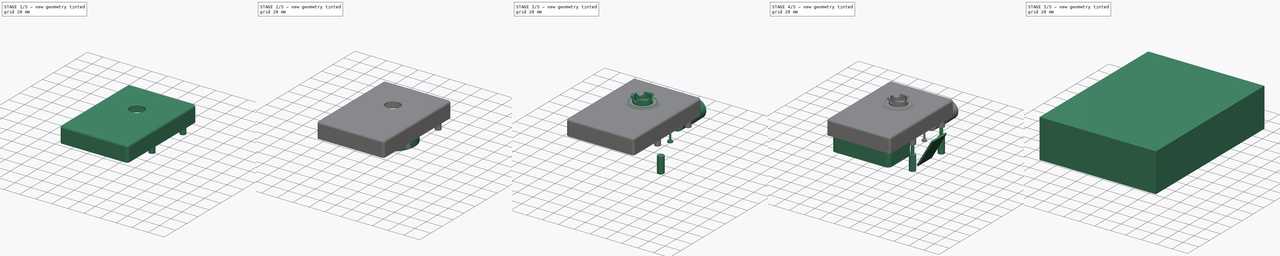
[diagram: build sequence overview — one tinted view per stage of 5, left to right]
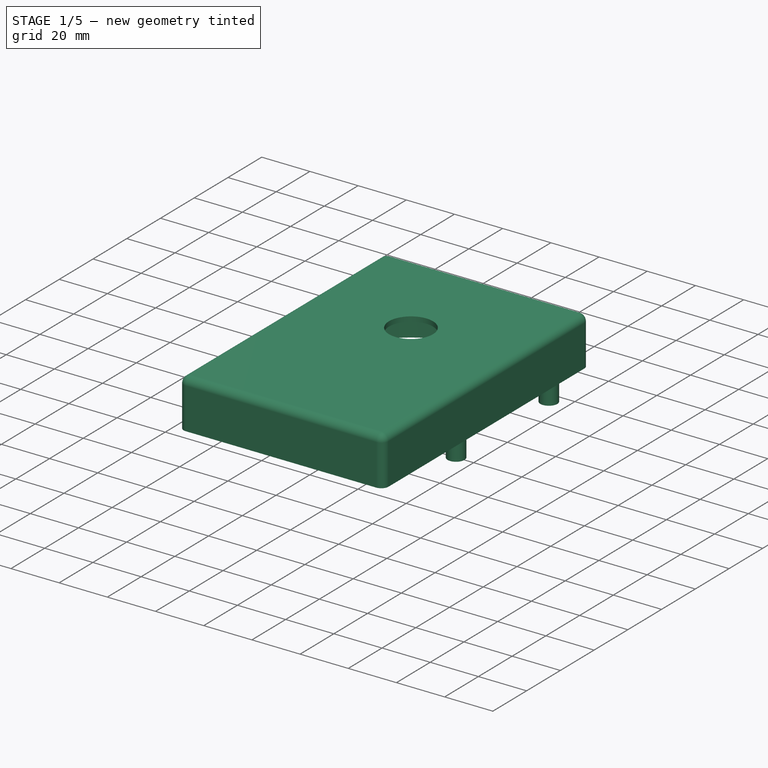
[diagram: stage 1 of 5 — iso view after this stage's code; geometry added in this stage tinted green]
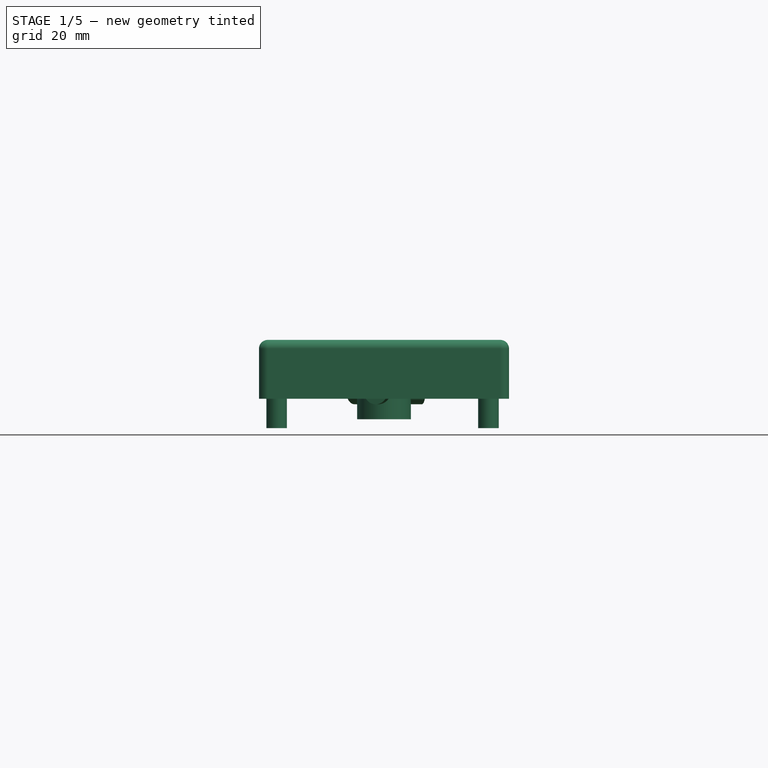
[diagram: stage 1 of 5 — front view after this stage's code; geometry added in this stage tinted green]
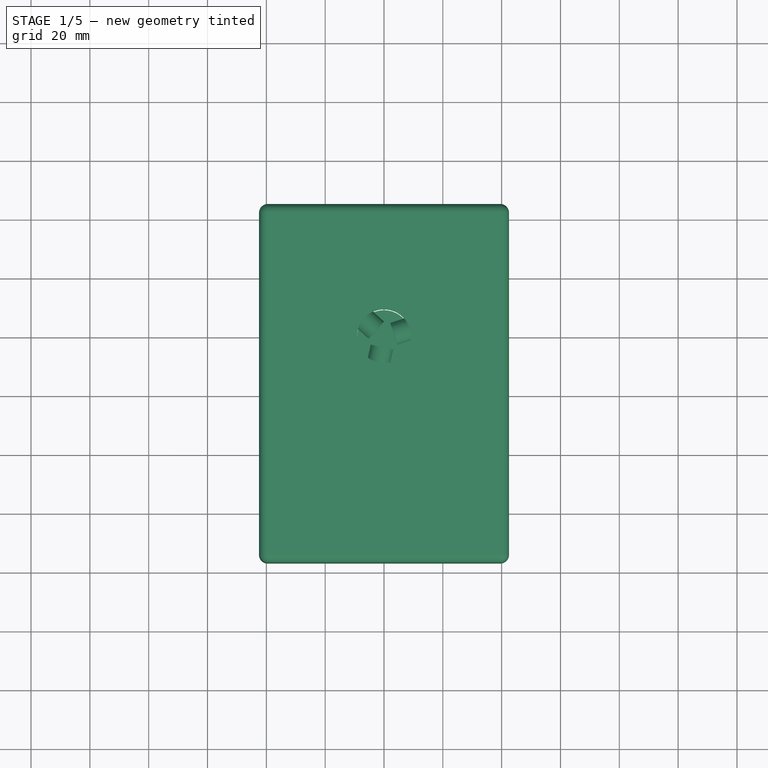
[diagram: stage 1 of 5 — top view after this stage's code; geometry added in this stage tinted green]
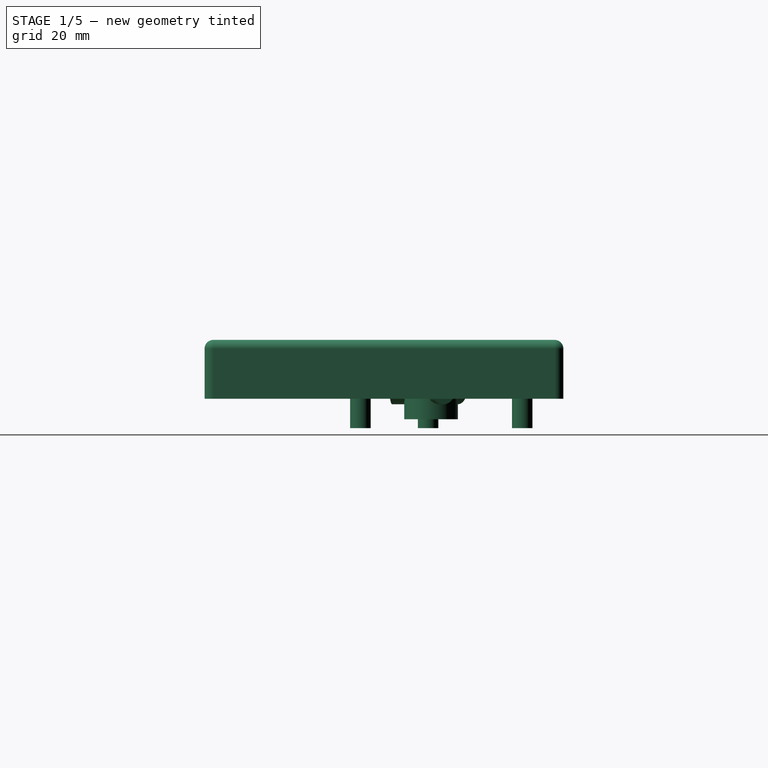
[diagram: stage 1 of 5 — right view after this stage's code; geometry added in this stage tinted green]
FCSTD DOCUMENT  (FreeCAD 0.18R4 (GitTag))
Label: PAPR-LOWER-V3
License: All rights reserved
LicenseURL: http://en.wikipedia.org/wiki/All_rights_reserved
objects: Part::Cylinder×35, Part::MultiFuse×18, Part::Fillet×15, Part::Box×10, Part::Cut×10, Part::FeaturePython×4, Sketcher::SketchObject×4, Part::Revolution×4, Part::Cone×3, Part::Mirroring×1, Part::Part2DObjectPython×1, Part::Extrusion×1
note: 106 computed .brp shape members not serialized (recipe doc carries the construction recipe); baked Part::Feature solids carry a one-line shape summary decoded from their .brp

FEATURE [Part::Box] Box011  label="LidBlock"
  AttacherType = Attacher::AttachEngine3D
  Height = 20
  Length = 85
  Placement = pos=(-42.5,-77,20) rot=(0,0,1;0rad)
  Width = 122
FEATURE [Part::Fillet] Fillet003  label="LidBlockSmooth"
  Base = -> Box011
  Edges = 8 edges r=3: [Edge1,Edge2,Edge3,Edge5,Edge6,Edge7,Edge10,Edge12]
FEATURE [Part::Cylinder] Cylinder020  label="LidBoss1"
  Angle = 360
  AttacherType = Attacher::AttachEngine3D
  Height = 10
  Placement = pos=(35.5,-24,10) rot=(0,0,1;0rad)
  Radius = 3.5
FEATURE [Part::Cylinder] Cylinder021  label="LidBoss2"
  Angle = 360
  AttacherType = Attacher::AttachEngine3D
  Height = 10
  Placement = pos=(35.5,31,10) rot=(0,0,1;0rad)
  Radius = 3.5
FEATURE [Part::Cylinder] Cylinder022  label="LidBoss3"
  Angle = 360
  AttacherType = Attacher::AttachEngine3D
  Height = 10
  Placement = pos=(-36.5,-1,10) rot=(0,0,1;0rad)
  Radius = 3.5
FEATURE [Part::Cylinder] Cylinder023  label="LidBossHole1"
  Angle = 360
  AttacherType = Attacher::AttachEngine3D
  Height = 10
  Placement = pos=(35.5,-24,10) rot=(0,0,1;0rad)
  Radius = 1.1
FEATURE [Part::Cylinder] Cylinder024  label="LidBossHole2"
  Angle = 360
  AttacherType = Attacher::AttachEngine3D
  Height = 10
  Placement = pos=(35.5,31,10) rot=(0,0,1;0rad)
  Radius = 1.1
FEATURE [Part::Cylinder] Cylinder025  label="LidBossHole3"
  Angle = 360
  AttacherType = Attacher::AttachEngine3D
  Height = 10
  Placement = pos=(-36.5,-1,10) rot=(0,0,1;0rad)
  Radius = 1.1
FEATURE [Part::Cut] Cut002  label="LidMount1"
  Base = -> Cylinder020
  Tool = -> Cylinder023
FEATURE [Part::Cut] Cut003  label="LidMount2"
  Base = -> Cylinder021
  Tool = -> Cylinder024
FEATURE [Part::Cylinder] Cylinder030  label="downpipe"
  Angle = 360
  AttacherType = Attacher::AttachEngine3D
  Height = 10
  Placement = pos=(0,0,13) rot=(0,0,1;0rad)
  Radius = 9.12
FEATURE [Part::Cylinder] Cylinder031  label="Cylinder029"
  Angle = 360
  AttacherType = Attacher::AttachEngine3D
  Height = 10
  Placement = pos=(3.3287,1.08156,22.1118) rot=(-0.154554,0.975821,0.154554;1.59527rad)
  Radius = 4
FEATURE [Part::FeaturePython] Array003  # Draft array (typed FeaturePython)
  Angle = 360
  ArrayType = 1
  Axis = (0,0,1)
  Base = -> Cylinder031
  Center = (0,0,0)
  Fuse = false
  IntervalAxis = (0,0,0)
  IntervalX = (1,0,0)
  IntervalY = (0,1,0)
  IntervalZ = (0,0,1)
  NumberPolar = 3
  NumberX = 1
  NumberY = 1
  NumberZ = 1
FEATURE [Part::Cylinder] Cylinder032  label="BlowerBodyEnvelopeLid"
  Angle = 360
  AttacherType = Attacher::AttachEngine3D
  Height = 18
  Placement = pos=(0,0,20) rot=(0,0,1;0rad)
  Radius = 35
FEATURE [Part::Cut] Cut009  label="LidMount3"
  Base = -> Cylinder022
  Tool = -> Cylinder025
FEATURE [Part::MultiFuse] Fusion023  label="LidOuter"
  Shapes = -> [Fillet003,Cut002,Cut009,Cut003]
FEATURE [Part::Cylinder] Cylinder033  label="OutletPocketLid"
  Angle = 360
  AttacherType = Attacher::AttachEngine3D
  Height = 40
  Placement = pos=(22,59.3,13.5) rot=(1,0,0;1.5708rad)
  Radius = 10.85
FEATURE [Part::Cylinder] Cylinder034  label="downpipeLid"
  Angle = 360
  AttacherType = Attacher::AttachEngine3D
  Height = 10
  Placement = pos=(0,0,38) rot=(0,0,1;0rad)
  Radius = 9.12
FEATURE [Part::MultiFuse] Fusion024  label="LidCombinedPocket"
  Shapes = -> [Cylinder033,Cylinder032,Cylinder034]
FEATURE [Part::Cut] Cut010  label="LidMinusInlet"
  Base = -> Fusion023
  Tool = -> Fusion024
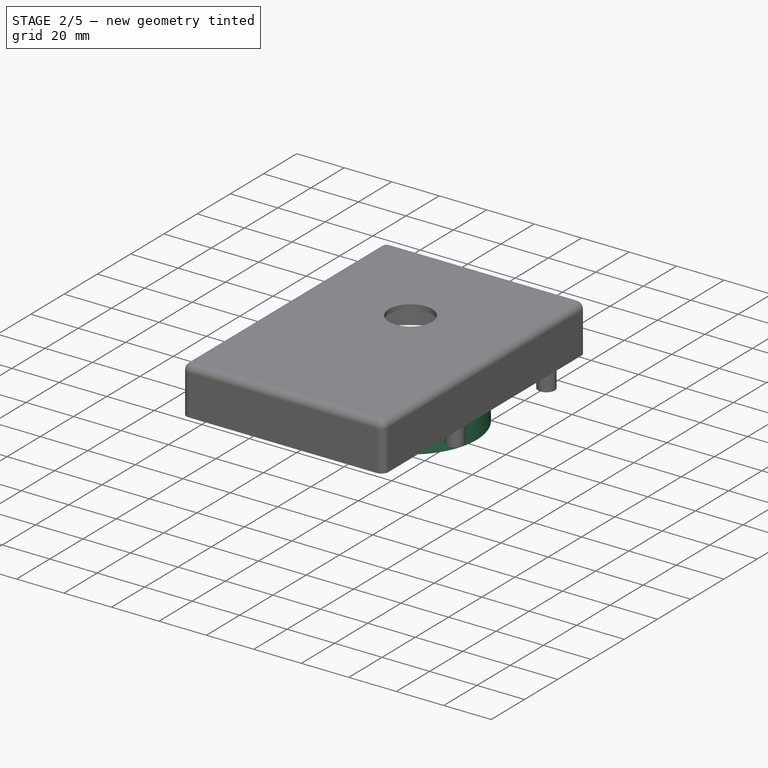
[diagram: stage 2 of 5 — iso view after this stage's code; geometry added in this stage tinted green]
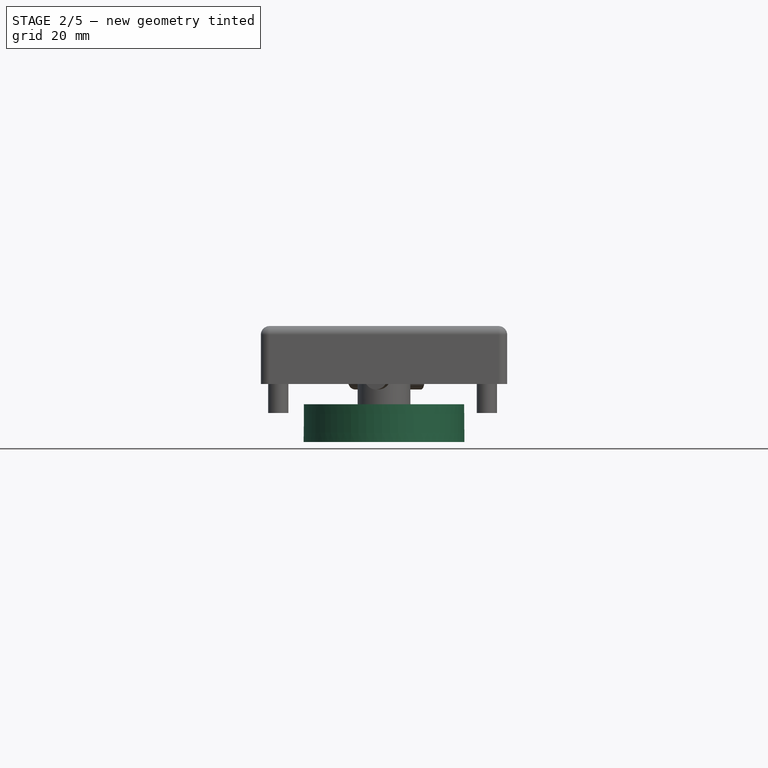
[diagram: stage 2 of 5 — front view after this stage's code; geometry added in this stage tinted green]
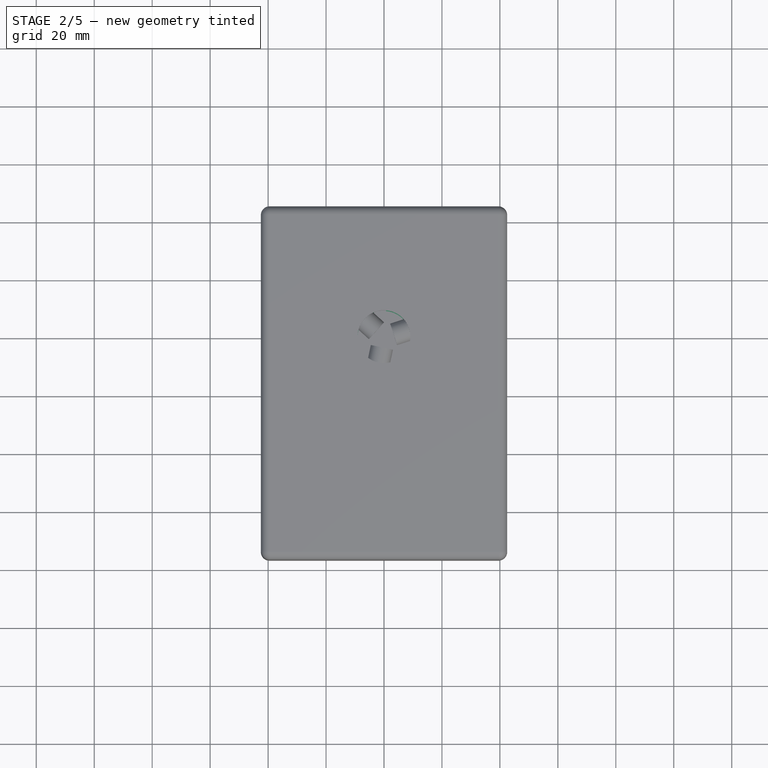
[diagram: stage 2 of 5 — top view after this stage's code; geometry added in this stage tinted green]
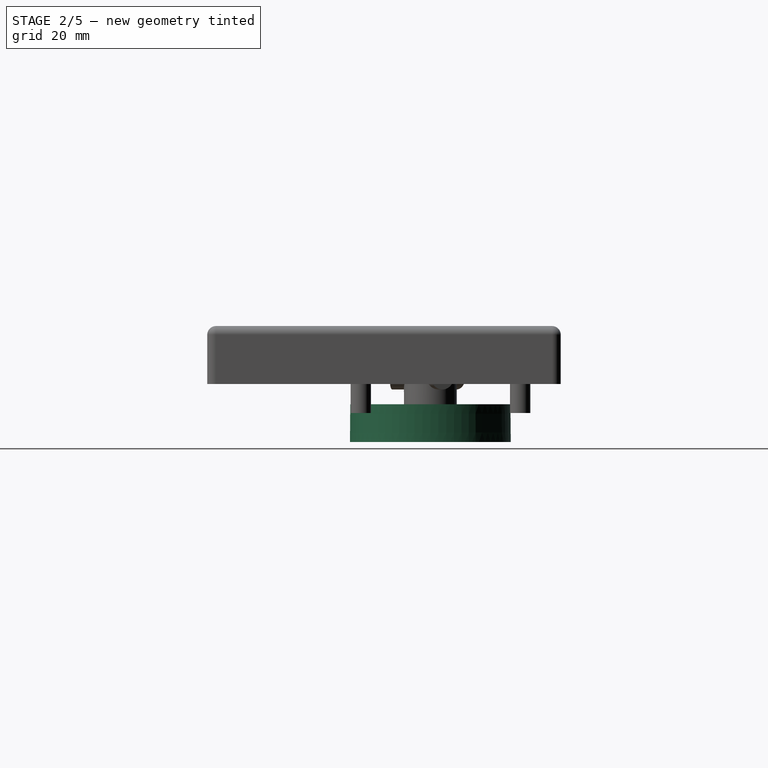
[diagram: stage 2 of 5 — right view after this stage's code; geometry added in this stage tinted green]
FEATURE [Part::Part2DObjectPython] ShapeString  # Draft 2D object (typed FeaturePython)
  FontFile = <path>
  Size = 5
  String = V2
  Tracking = 0
FEATURE [Sketcher::SketchObject] Sketch002  label="BayonetTooth001"
  Placement = pos=(0,0,0) rot=(1,0,0;1.5708rad)
  sketch-geometry (4):
    g0: LineSegment StartX=9.125 StartY=8.5 StartZ=0 EndX=12.625 EndY=8.5 EndZ=0
    g1: LineSegment StartX=12.625 StartY=8.5 StartZ=0 EndX=12.625 EndY=5.7 EndZ=0
    g2: LineSegment StartX=12.625 StartY=5.7 StartZ=0 EndX=9.125 EndY=5.7 EndZ=0
    g3: LineSegment StartX=9.125 StartY=5.7 StartZ=0 EndX=9.125 EndY=8.5 EndZ=0
  constraints (12):
    c: Coincident(g0,g1)
    c: Coincident(g1,g2)
    c: Coincident(g2,g3)
    c: Coincident(g3,g0)
    c: Horizontal(g0)
    c: Horizontal(g2)
    c: Vertical(g1)
    c: Vertical(g3)
    c: DistanceY(g1,g0) = 2.8
    c: DistanceX(g2,g1) = 3.5
    c: DistanceY(g-1,g0) = 8.5
    c: DistanceX(g-1,g2) = 9.125
FEATURE [Sketcher::SketchObject] Sketch003  label="BayonetTooth002"
  Placement = pos=(0,0,0) rot=(1,0,0;1.5708rad)
  sketch-geometry (4):
    g0: LineSegment StartX=9.125 StartY=8.5 StartZ=0 EndX=12.625 EndY=8.5 EndZ=0
    g1: LineSegment StartX=12.625 StartY=8.5 StartZ=0 EndX=12.625 EndY=5.7 EndZ=0
    g2: LineSegment StartX=12.625 StartY=5.7 StartZ=0 EndX=9.125 EndY=5.7 EndZ=0
    g3: LineSegment StartX=9.125 StartY=5.7 StartZ=0 EndX=9.125 EndY=8.5 EndZ=0
  constraints (12):
    c: Coincident(g0,g1)
    c: Coincident(g1,g2)
    c: Coincident(g2,g3)
    c: Coincident(g3,g0)
    c: Horizontal(g0)
    c: Horizontal(g2)
    c: Vertical(g1)
    c: Vertical(g3)
    c: DistanceY(g1,g0) = 2.8
    c: DistanceX(g2,g1) = 3.5
    c: DistanceY(g-1,g0) = 8.5
    c: DistanceX(g-1,g2) = 9.125
FEATURE [Sketcher::SketchObject] Sketch  label="GrooveProfile"
  Placement = pos=(0,0,0) rot=(1,0,0;1.5708rad)
  sketch-geometry (4):
    g0: LineSegment StartX=15.5 StartY=2 StartZ=0 EndX=14.5 EndY=2 EndZ=0
    g1: LineSegment StartX=14.5 StartY=2 StartZ=0 EndX=14.5 EndY=1 EndZ=0
    g2: LineSegment StartX=14.5 StartY=1 StartZ=0 EndX=15.5 EndY=1 EndZ=0
    g3: LineSegment StartX=15.5 StartY=1 StartZ=0 EndX=15.5 EndY=2 EndZ=0
  constraints (12):
    c: Coincident(g0,g1)
    c: Coincident(g1,g2)
    c: Coincident(g2,g3)
    c: Coincident(g3,g0)
    c: Horizontal(g0)
    c: Horizontal(g2)
    c: Vertical(g1)
    c: Vertical(g3)
    c: DistanceY(g1,g0) = 1
    c: Equal(g0,g1)
    c: DistanceX(g-1,g0) = 15.5
    c: DistanceY(g1,g-1) = -1
FEATURE [Sketcher::SketchObject] Sketch001  label="BayonetTooth"
  Placement = pos=(0,0,0) rot=(1,0,0;1.5708rad)
  sketch-geometry (4):
    g0: LineSegment StartX=9.125 StartY=8.5 StartZ=0 EndX=12.625 EndY=8.5 EndZ=0
    g1: LineSegment StartX=12.625 StartY=8.5 StartZ=0 EndX=12.625 EndY=5.7 EndZ=0
    g2: LineSegment StartX=12.625 StartY=5.7 StartZ=0 EndX=9.125 EndY=5.7 EndZ=0
    g3: LineSegment StartX=9.125 StartY=5.7 StartZ=0 EndX=9.125 EndY=8.5 EndZ=0
  constraints (12):
    c: Coincident(g0,g1)
    c: Coincident(g1,g2)
    c: Coincident(g2,g3)
    c: Coincident(g3,g0)
    c: Horizontal(g0)
    c: Horizontal(g2)
    c: Vertical(g1)
    c: Vertical(g3)
    c: DistanceY(g1,g0) = 2.8
    c: DistanceX(g2,g1) = 3.5
    c: DistanceY(g-1,g0) = 8.5
    c: DistanceX(g-1,g2) = 9.125
FEATURE [Part::Cylinder] Cylinder026
  Angle = 360
  AttacherType = Attacher::AttachEngine3D
  Height = 8.5
  Radius = 10.625
FEATURE [Part::Cylinder] Cylinder027
  Angle = 360
  AttacherType = Attacher::AttachEngine3D
  Height = 1.5
  Radius = 18
FEATURE [Part::Cylinder] Cylinder028
  Angle = 360
  AttacherType = Attacher::AttachEngine3D
  Height = 8.5
  Radius = 9.125
FEATURE [Part::Revolution] Revolve003  label="LongTooth2"
  Angle = 35
  Axis = (0,0,1)
  Base = (0,0,0)
  FaceMakerClass = Part::FaceMakerBullseye
  Placement = pos=(0,0,0) rot=(0,0,1;3.15905rad)
  Solid = true
  Source = -> Sketch003
  Symmetric = false
FEATURE [Part::Fillet] Fillet010
  Base = -> Revolve003
  Edges = 1 edges r=1: [Edge10]
FEATURE [Part::Fillet] Fillet011
  Base = -> Fillet010
  Edges = 1 edges r=1: [Edge7]
FEATURE [Part::Revolution] Revolve
  Angle = 360
  Axis = (0,0,1)
  Base = (0,0,0)
  FaceMakerClass = Part::FaceMakerBullseye
  Solid = true
  Source = -> Sketch
  Symmetric = false
FEATURE [Part::Fillet] Fillet013
  Base = -> Revolve
  Edges = 1 edges r=0.25: [Edge5]
FEATURE [Part::Fillet] Fillet012
  Base = -> Fillet013
  Edges = 1 edges r=0.25: [Edge2]
FEATURE [Part::Fillet] Fillet008
  Base = -> Fillet012
  Edges = 1 edges r=0.25: [Edge10]
FEATURE [Part::Revolution] Revolve001  label="LongTooth1"
  Angle = 35
  Axis = (0,0,1)
  Base = (0,0,0)
  FaceMakerClass = Part::FaceMakerBullseye
  Placement = pos=(0,0,0) rot=(0,0,-1;1.02974rad)
  Solid = true
  Source = -> Sketch001
  Symmetric = false
FEATURE [Part::Fillet] Fillet006
  Base = -> Revolve001
  Edges = 1 edges r=1: [Edge10]
FEATURE [Part::Revolution] Revolve002  label="ShortTooth"
  Angle = 28.4
  Axis = (0,0,1)
  Base = (0,0,0)
  FaceMakerClass = Part::FaceMakerBullseye
  Placement = pos=(0,0,0) rot=(0,0,1;1.06465rad)
  Solid = true
  Source = -> Sketch002
  Symmetric = false
FEATURE [Part::MultiFuse] Fusion022
  Shapes = -> [Cylinder027,Cylinder026]
FEATURE [Part::Extrusion] Extrude
  Base = -> ShapeString
  Dir = (0,0,1)
  DirMode = 2
  FaceMakerClass = Part::FaceMakerBullseye
  LengthFwd = 0.5
  LengthRev = 0
  Placement = pos=(-11,4,0.5) rot=(0.707107,-0.707107,0;3.14159rad)
  Solid = false
  Symmetric = false
FEATURE [Part::Cone] Cone002  label="BlowerInlet001"
  Angle = 360
  AttacherType = Attacher::AttachEngine3D
  Height = 13
  Radius1 = 27.75
  Radius2 = 27.65
FEATURE [Part::Cut] Cut006
  Base = -> Fusion022
  Tool = -> Cylinder028
FEATURE [Part::Fillet] Fillet014
  Base = -> Cut006
  Edges = 1 edges r=0.5: [Edge3]
FEATURE [Part::Cut] Cut007
  Base = -> Fillet014
  Tool = -> Extrude
FEATURE [Part::MultiFuse] Fusion003  label="Inside"
  Shapes = -> [Cylinder030,Array003]
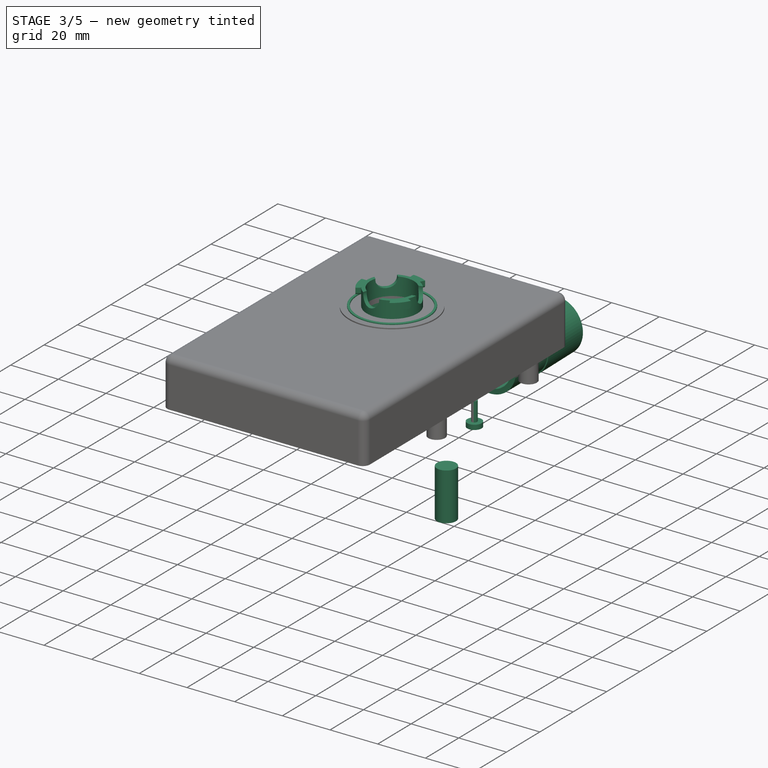
[diagram: stage 3 of 5 — iso view after this stage's code; geometry added in this stage tinted green]
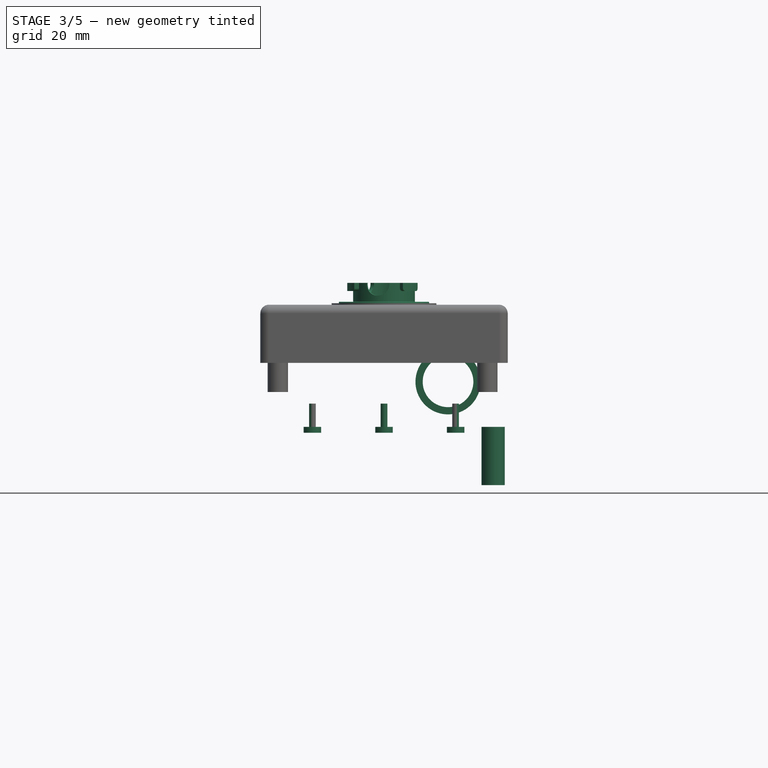
[diagram: stage 3 of 5 — front view after this stage's code; geometry added in this stage tinted green]
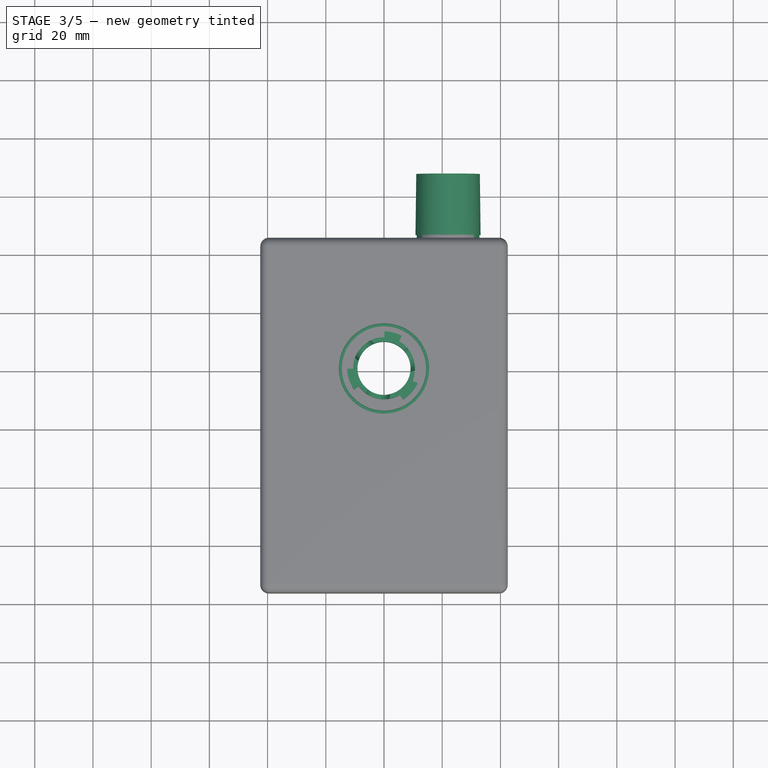
[diagram: stage 3 of 5 — top view after this stage's code; geometry added in this stage tinted green]
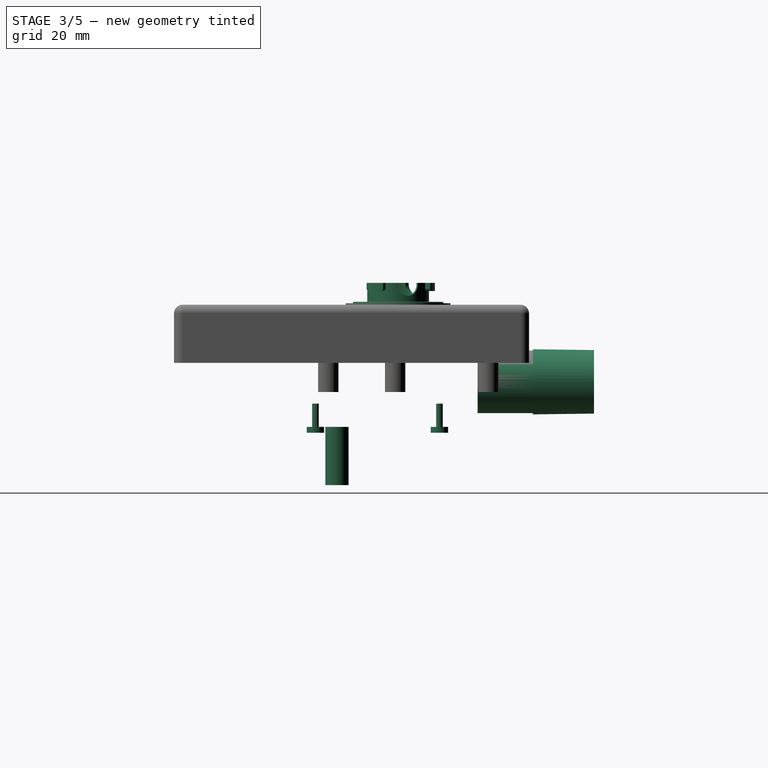
[diagram: stage 3 of 5 — right view after this stage's code; geometry added in this stage tinted green]
FEATURE [Part::Cylinder] Cylinder014  label="Cylinder009"
  Angle = 360
  AttacherType = Attacher::AttachEngine3D
  Height = 20
  Placement = pos=(37.5,-21,-22) rot=(0,0,1;0rad)
  Radius = 4
FEATURE [Part::Cylinder] Cylinder017
  Angle = 360
  AttacherType = Attacher::AttachEngine3D
  Height = 10
  Placement = pos=(0,-28.4,-4) rot=(0,0,1;0rad)
  Radius = 1.15
FEATURE [Part::FeaturePython] Array001  label="BlowerMountingHoles"  # Draft array (typed FeaturePython)
  Angle = 360
  ArrayType = 1
  Axis = (0,0,1)
  Base = -> Cylinder017
  Center = (0,0,0)
  Fuse = false
  IntervalAxis = (0,0,0)
  IntervalX = (1,0,0)
  IntervalY = (0,1,0)
  IntervalZ = (0,0,1)
  NumberPolar = 3
  NumberX = 1
  NumberY = 1
  NumberZ = 1
FEATURE [Part::Cylinder] Cylinder018
  Angle = 360
  AttacherType = Attacher::AttachEngine3D
  Height = 2
  Placement = pos=(0,-28.4,-4) rot=(0,0,1;0rad)
  Radius = 3
FEATURE [Part::FeaturePython] Array002  label="BlowerMountingCounterbore"  # Draft array (typed FeaturePython)
  Angle = 360
  ArrayType = 1
  Axis = (0,0,1)
  Base = -> Cylinder018
  Center = (0,0,0)
  Fuse = false
  IntervalAxis = (0,0,0)
  IntervalX = (1,0,0)
  IntervalY = (0,1,0)
  IntervalZ = (0,0,1)
  NumberPolar = 3
  NumberX = 1
  NumberY = 1
  NumberZ = 1
FEATURE [Part::MultiFuse] Fusion016  label="BlowerMounting"
  Shapes = -> [Array001,Array002]
FEATURE [Part::Cylinder] Cylinder019  label="HousingOutlet"
  Angle = 360
  AttacherType = Attacher::AttachEngine3D
  Height = 40
  Radius = 10.75
FEATURE [Part::Cylinder] Cylinder005  label="OutletExtension"
  Angle = 360
  AttacherType = Attacher::AttachEngine3D
  Height = 40
  Radius = 8.7
FEATURE [Part::Cone] Cone001  label="22mmTaper"
  Angle = 360
  AttacherType = Attacher::AttachEngine3D
  Height = 21
  Placement = pos=(0,0,19) rot=(0,0,1;0rad)
  Radius1 = 11.19
  Radius2 = 10.92
FEATURE [Part::MultiFuse] Fusion020  label="Outside"
  Shapes = -> [Cone001,Cylinder019]
FEATURE [Part::Cut] Cut001  label="BlowerOutletAdapter-V3"
  Base = -> Fusion020
  Placement = pos=(22,27.3,13.5) rot=(1,0,0;4.71239rad)
  Tool = -> Cylinder005
FEATURE [Part::Cylinder] Cylinder029  label="OuterBody"
  Angle = 360
  AttacherType = Attacher::AttachEngine3D
  Height = 15
  Radius = 29.75
FEATURE [Part::Fillet] Fillet009
  Base = -> Fillet008
  Edges = 1 edges r=0.25: [Edge8]
FEATURE [Part::Fillet] Fillet007
  Base = -> Fillet006
  Edges = 1 edges r=1: [Edge7]
FEATURE [Part::Fillet] Fillet004
  Base = -> Revolve002
  Edges = 1 edges r=1: [Edge10]
FEATURE [Part::Fillet] Fillet005
  Base = -> Fillet004
  Edges = 1 edges r=1: [Edge7]
FEATURE [Part::Cut] Cut005  label="OutletCap"
  Base = -> Cylinder029
  Tool = -> Cone002
FEATURE [Part::MultiFuse] Fusion021  label="BayonetMtestV2"
  Placement = pos=(0,0,14) rot=(0,0,1;0rad)
  Shapes = -> [Fillet011,Fillet005,Fillet007,Fillet009,Cut007]
FEATURE [Part::MultiFuse] Fusion002  label="Outside001"
  Shapes = -> [Cut005,Fusion021]
FEATURE [Part::Cut] Cut008  label="BlowerInletBody"
  Base = -> Fusion002
  Placement = pos=(0,0,25) rot=(0,0,1;0rad)
  Tool = -> Fusion003
FEATURE [Part::MultiFuse] Fusion025  label="Lid"
  Shapes = -> [Cut010,Cut008]
note: 1 file-system path scrubbed to <path> (originals preserved in the JSON sidecar)
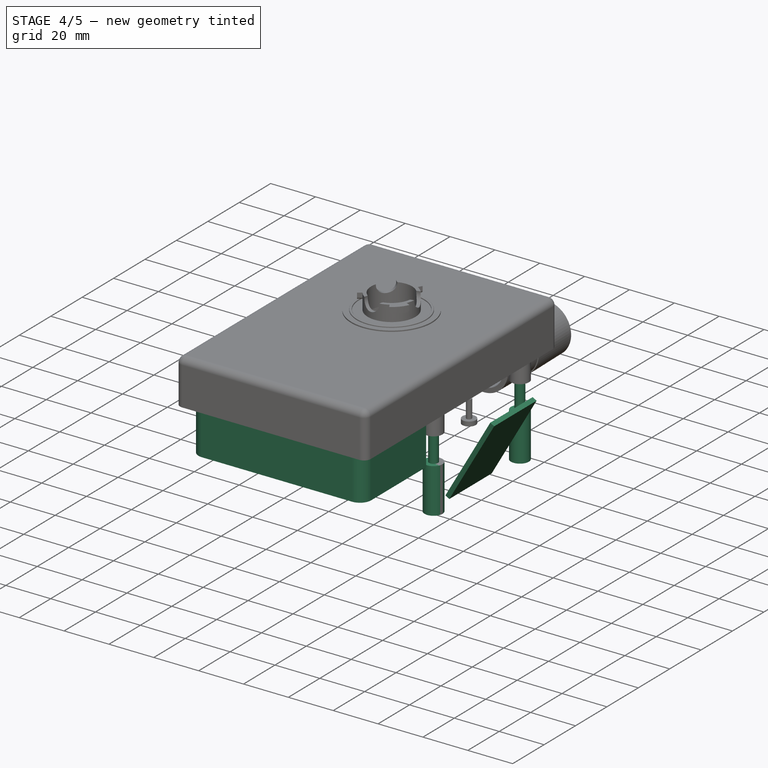
[diagram: stage 4 of 5 — iso view after this stage's code; geometry added in this stage tinted green]
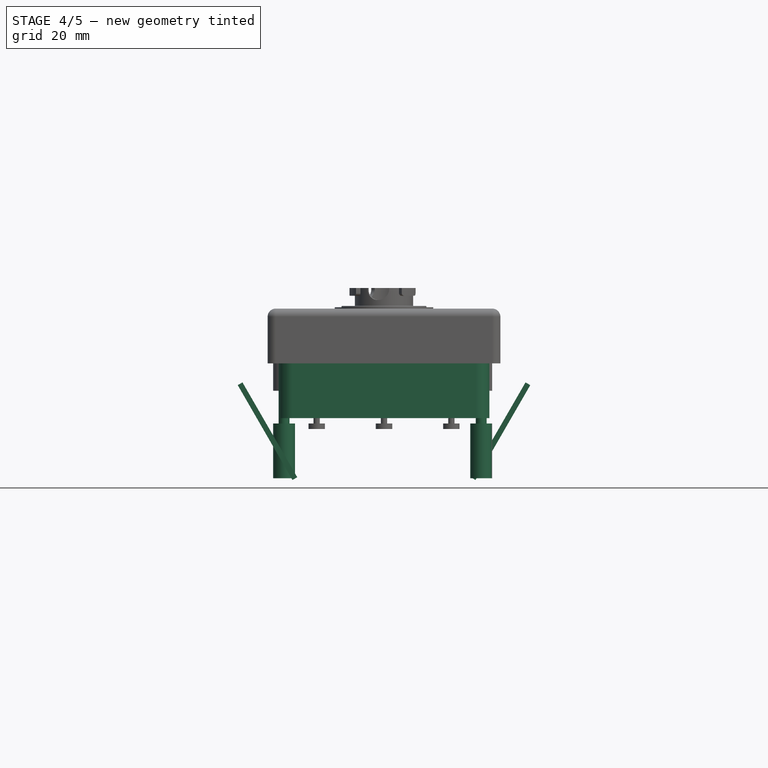
[diagram: stage 4 of 5 — front view after this stage's code; geometry added in this stage tinted green]
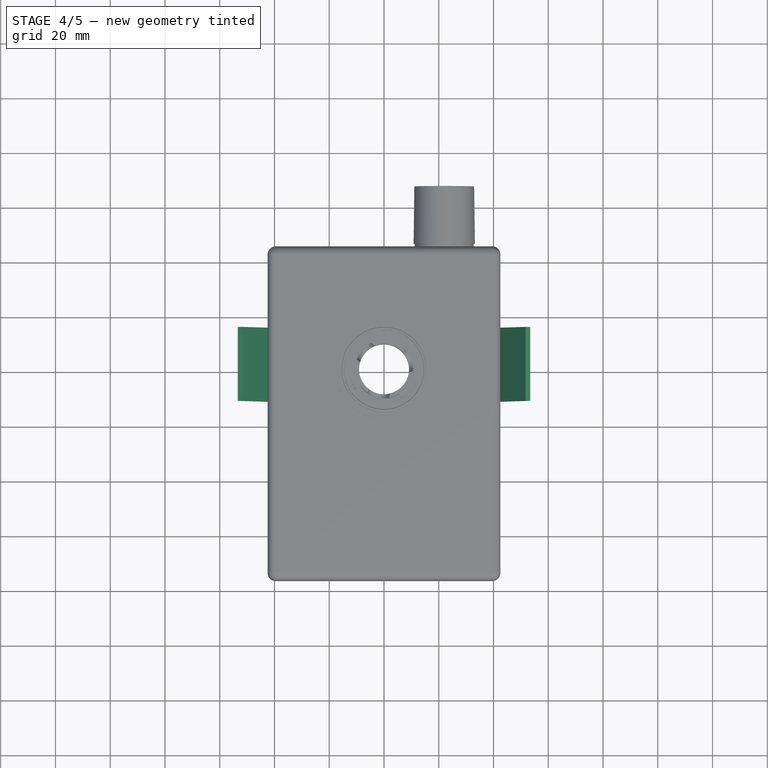
[diagram: stage 4 of 5 — top view after this stage's code; geometry added in this stage tinted green]
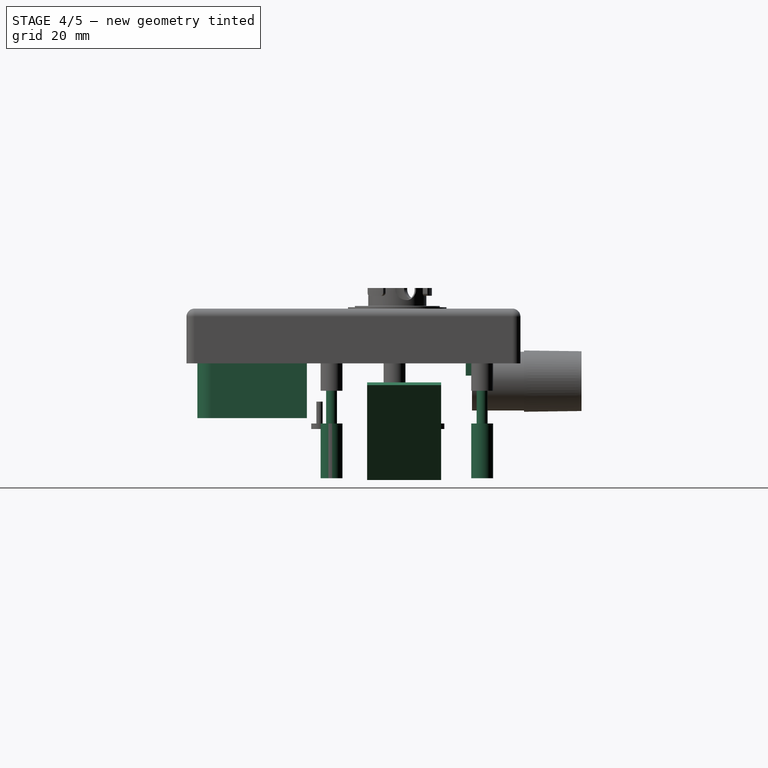
[diagram: stage 4 of 5 — right view after this stage's code; geometry added in this stage tinted green]
FEATURE [Part::Box] Box001  label="WiringPocket"
  AttacherType = Attacher::AttachEngine3D
  Height = 20
  Length = 77
  Placement = pos=(-38.5,-73,0) rot=(0,0,1;0rad)
  Width = 40
FEATURE [Part::Cylinder] Cylinder008  label="Cylinder003"
  Angle = 360
  AttacherType = Attacher::AttachEngine3D
  Height = 10
  Placement = pos=(-41.5,-1,10) rot=(0,0,1;0rad)
  Radius = 4
FEATURE [Part::Cylinder] Cylinder009  label="Cylinder004"
  Angle = 360
  AttacherType = Attacher::AttachEngine3D
  Height = 10
  Placement = pos=(37.5,-21,10) rot=(0,0,1;0rad)
  Radius = 4
FEATURE [Part::Cylinder] Cylinder010  label="Cylinder005"
  Angle = 360
  AttacherType = Attacher::AttachEngine3D
  Height = 10
  Placement = pos=(37.5,23,10) rot=(0,0,1;0rad)
  Radius = 4
FEATURE [Part::Cylinder] Cylinder011  label="Cylinder006"
  Angle = 360
  AttacherType = Attacher::AttachEngine3D
  Height = 30
  Placement = pos=(37.5,-21,-20) rot=(0,0,1;0rad)
  Radius = 2
FEATURE [Part::Cylinder] Cylinder012  label="Cylinder007"
  Angle = 360
  AttacherType = Attacher::AttachEngine3D
  Height = 30
  Placement = pos=(37.5,23,-20) rot=(0,0,1;0rad)
  Radius = 2
FEATURE [Part::Cylinder] Cylinder013  label="Cylinder008"
  Angle = 360
  AttacherType = Attacher::AttachEngine3D
  Height = 30
  Placement = pos=(-41.5,-1,-20) rot=(0,0,1;0rad)
  Radius = 2
FEATURE [Part::Cylinder] Cylinder015  label="Cylinder010"
  Angle = 360
  AttacherType = Attacher::AttachEngine3D
  Height = 20
  Placement = pos=(37.5,23,-22) rot=(0,0,1;0rad)
  Radius = 4
FEATURE [Part::Cylinder] Cylinder016  label="Cylinder011"
  Angle = 360
  AttacherType = Attacher::AttachEngine3D
  Height = 20
  Placement = pos=(-41.5,-1,-22) rot=(0,0,1;0rad)
  Radius = 4
FEATURE [Part::Box] Box009  label="WirePocket"
  AttacherType = Attacher::AttachEngine3D
  Height = 4.5
  Length = 4.5
  Placement = pos=(-14,25,15.5) rot=(0,0,1;0rad)
  Width = 20
FEATURE [Part::MultiFuse] Fusion013  label="MountingColumn3"
  Placement = pos=(5,0,0) rot=(0,0,1;0rad)
  Shapes = -> [Cylinder008,Cylinder013,Cylinder016]
FEATURE [Part::MultiFuse] Fusion014  label="MountingColumn2"
  Placement = pos=(-2,8,0) rot=(0,0,1;0rad)
  Shapes = -> [Cylinder015,Cylinder012,Cylinder010]
FEATURE [Part::MultiFuse] Fusion015  label="MountingColumn1"
  Placement = pos=(-2,-3,0) rot=(0,0,1;0rad)
  Shapes = -> [Cylinder009,Cylinder014,Cylinder011]
FEATURE [Part::Fillet] Fillet002  label="ElectricalPocket"
  Base = -> Box001
  Edges = 2 edges r=5: [Edge1,Edge5]
FEATURE [Part::Box] Box006  label="Slot2"
  AttacherType = Attacher::AttachEngine3D
  Height = 2
  Length = 27
  Placement = pos=(-33.4228,-44,-24.6059) rot=(0.447214,0.447214,0.774597;1.82348rad)
  Width = 40
FEATURE [Part::Box] Box010  label="Slot003"
  AttacherType = Attacher::AttachEngine3D
  Height = 2
  Length = 27
  Placement = pos=(-33.4228,-44,-24.6059) rot=(0.447214,0.447214,0.774597;1.82352rad)
  Width = 40
FEATURE [Part::Mirroring] Part__Mirroring  label="Slot003 (Mirror #1)"
  Base = (0,0,0)
  Normal = (1,0,0)
  Source = -> Box010
FEATURE [Part::MultiFuse] Fusion  label="StrapSlots"
  Placement = pos=(0,33,2) rot=(0,0,1;0rad)
  Shapes = -> [Box006,Part__Mirroring]
FEATURE [Part::MultiFuse] Fusion017
  Shapes = -> [Fusion015,Fusion014,Fusion013,Fusion016]
FEATURE [Part::MultiFuse] Fusion018  label="MountingPockets"
  Shapes = -> [Fusion017]
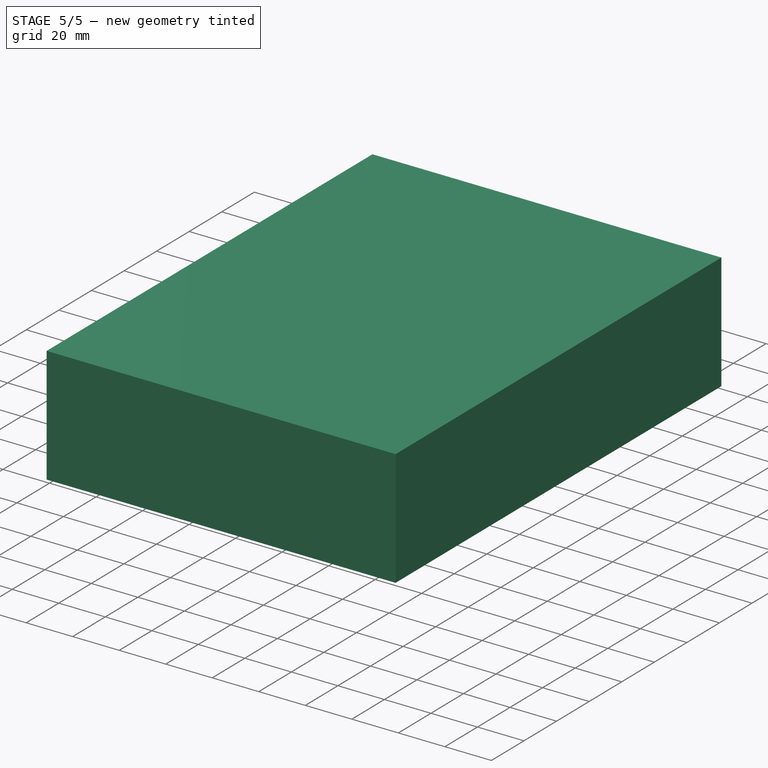
[diagram: stage 5 of 5 — iso view after this stage's code; geometry added in this stage tinted green]
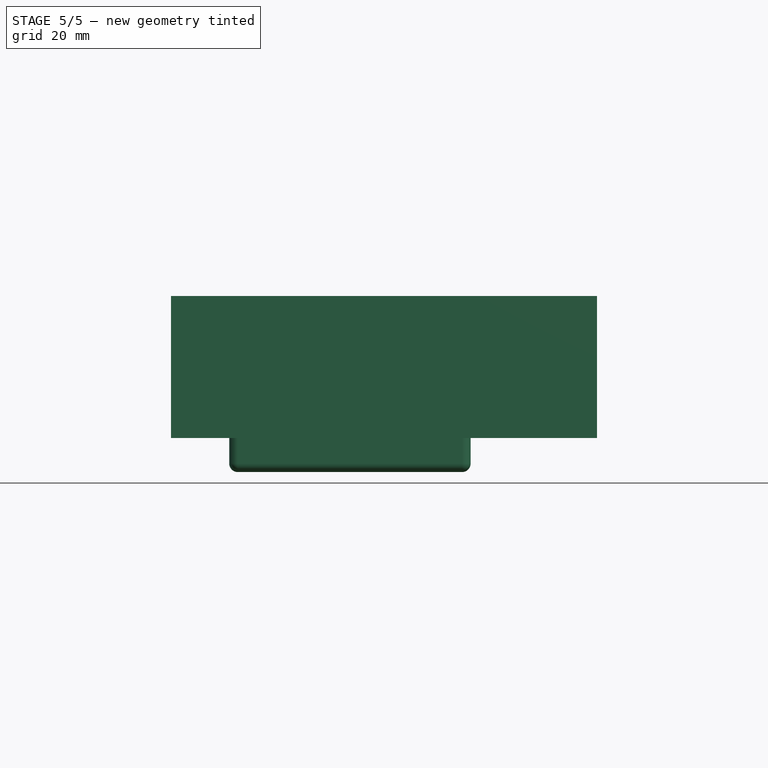
[diagram: stage 5 of 5 — front view after this stage's code; geometry added in this stage tinted green]
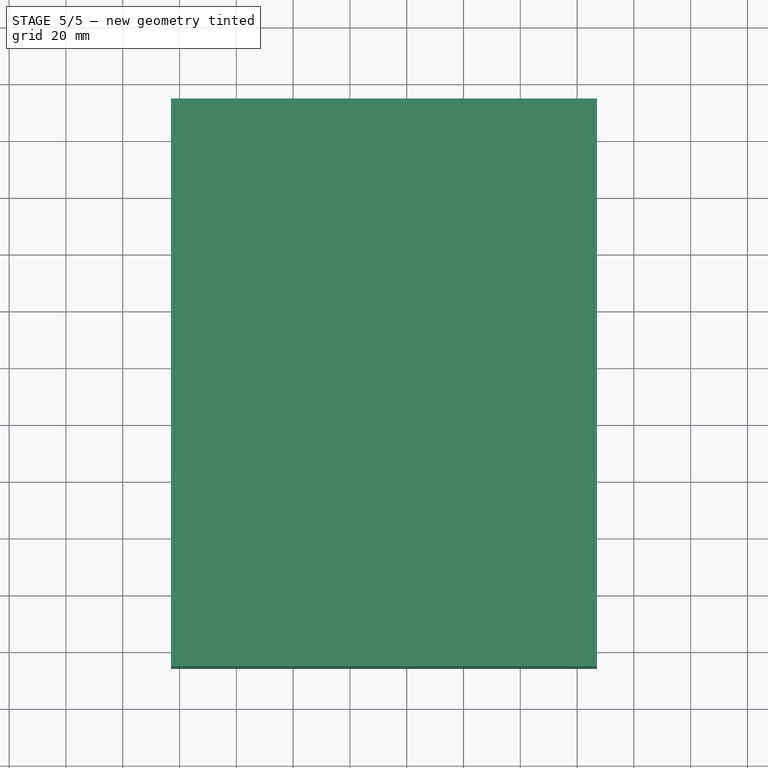
[diagram: stage 5 of 5 — top view after this stage's code; geometry added in this stage tinted green]
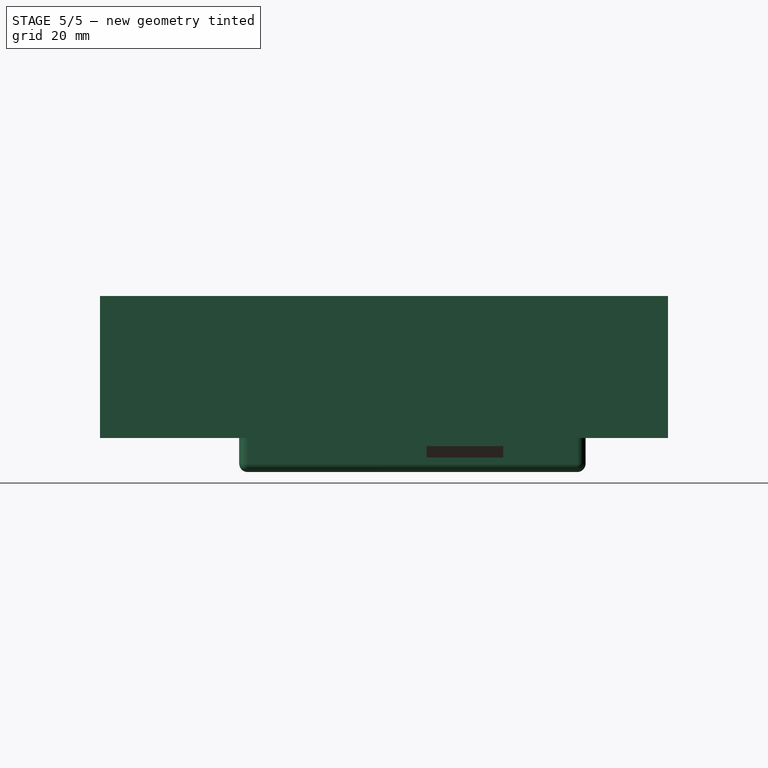
[diagram: stage 5 of 5 — right view after this stage's code; geometry added in this stage tinted green]
FEATURE [Part::Cylinder] Cylinder  label="BlowerBody"
  Angle = 360
  AttacherType = Attacher::AttachEngine3D
  Height = 18
  Placement = pos=(0,0,4.5) rot=(0,0,1;0rad)
  Radius = 35
FEATURE [Part::Cylinder] Cylinder001  label="BlowerEndbearing"
  Angle = 360
  AttacherType = Attacher::AttachEngine3D
  Height = 5
  Placement = pos=(0,0,1) rot=(0,0,1;0rad)
  Radius = 2.25
FEATURE [Part::Cylinder] Cylinder002
  Angle = 360
  AttacherType = Attacher::AttachEngine3D
  Height = 10
  Placement = pos=(0,-28.4,0) rot=(0,0,1;0rad)
  Radius = 2
FEATURE [Part::FeaturePython] Array  label="BlowerFeet"  # Draft array (typed FeaturePython)
  Angle = 360
  ArrayType = 1
  Axis = (0,0,1)
  Base = -> Cylinder002
  Center = (0,0,0)
  Fuse = false
  IntervalAxis = (0,0,0)
  IntervalX = (1,0,0)
  IntervalY = (0,1,0)
  IntervalZ = (0,0,1)
  NumberPolar = 3
  NumberX = 1
  NumberY = 1
  NumberZ = 1
FEATURE [Part::Cylinder] Cylinder003  label="BlowerOutlet"
  Angle = 360
  AttacherType = Attacher::AttachEngine3D
  Height = 40
  Placement = pos=(22,36.3,13.5) rot=(1,0,0;1.5708rad)
  Radius = 8.75
FEATURE [Part::Cone] Cone  label="BlowerInlet"
  Angle = 360
  AttacherType = Attacher::AttachEngine3D
  Height = 13
  Placement = pos=(0,0,22.5) rot=(0,0,1;0rad)
  Radius1 = 27.25
  Radius2 = 27.15
FEATURE [Part::Cylinder] Cylinder004  label="BlowerBodyEnvelope"
  Angle = 360
  AttacherType = Attacher::AttachEngine3D
  Height = 25
  Radius = 35
FEATURE [Part::Box] Box002  label="Potentiometer"
  AttacherType = Attacher::AttachEngine3D
  Height = 17
  Length = 10.5
  Placement = pos=(-30,8,5.5) rot=(0,0,1;0rad)
  Width = 45
FEATURE [Part::Cylinder] Cylinder006  label="Cylinder"
  Angle = 360
  AttacherType = Attacher::AttachEngine3D
  Height = 10
  Placement = pos=(-24.75,60.5,11) rot=(1,0,0;1.5708rad)
  Radius = 3.65
FEATURE [Part::MultiFuse] Fusion001  label="PotPocket"
  Placement = pos=(-5,-10,-2.5) rot=(0,0,1;0rad)
  Shapes = -> [Cylinder006,Box002]
FEATURE [Part::Box] Box003  label="Cube"
  AttacherType = Attacher::AttachEngine3D
  Height = 25
  Length = 75
  Placement = pos=(-37.5,-73,-29) rot=(0,0,1;0rad)
  Width = 150
FEATURE [Part::Box] Box004  label="HousingBlock"
  AttacherType = Attacher::AttachEngine3D
  Height = 32
  Length = 85
  Placement = pos=(-42.5,-77,-12) rot=(0,0,1;0rad)
  Width = 122
FEATURE [Part::Cylinder] Cylinder007  label="OutletPocket"
  Angle = 360
  AttacherType = Attacher::AttachEngine3D
  Height = 40
  Placement = pos=(22,59.3,13.5) rot=(1,0,0;1.5708rad)
  Radius = 10.85
FEATURE [Part::Box] Box007  label="Cube001"
  AttacherType = Attacher::AttachEngine3D
  Height = 50
  Length = 150
  Placement = pos=(-63,-126,0) rot=(0,0,1;0rad)
  Width = 200
FEATURE [Part::Box] Box008  label="OutletPocket2"
  AttacherType = Attacher::AttachEngine3D
  Height = 25
  Length = 10
  Placement = pos=(25,0,0) rot=(0,0,1;0rad)
  Width = 35
FEATURE [Part::MultiFuse] Fusion012  label="BlowerPocket"
  Shapes = -> [Cylinder004,Cone,Cylinder003,Array,Cylinder001,Cylinder,Cylinder007,Box008]
FEATURE [Part::Fillet] Fillet  label="BatteryPocket"
  Base = -> Box003
  Edges = 12 edges r=9.5: [Edge1,Edge2,Edge3,Edge4,Edge5,Edge6,Edge7,Edge8,Edge9,Edge10,Edge11,Edge12]
FEATURE [Part::Fillet] Fillet001  label="HousingBlockSmooth"
  Base = -> Box004
  Edges = 8 edges r=3: [Edge1,Edge3,Edge4,Edge5,Edge7,Edge8,Edge9,Edge11]
FEATURE [Part::MultiFuse] Fusion019  label="CombinedPocket"
  Shapes = -> [Fillet002,Fusion012,Fusion,Fusion018,Fusion001,Box009,Fillet]
FEATURE [Part::Cut] Cut  label="PAPR-Lower-V3"
  Base = -> Fillet001
  Tool = -> Fusion019
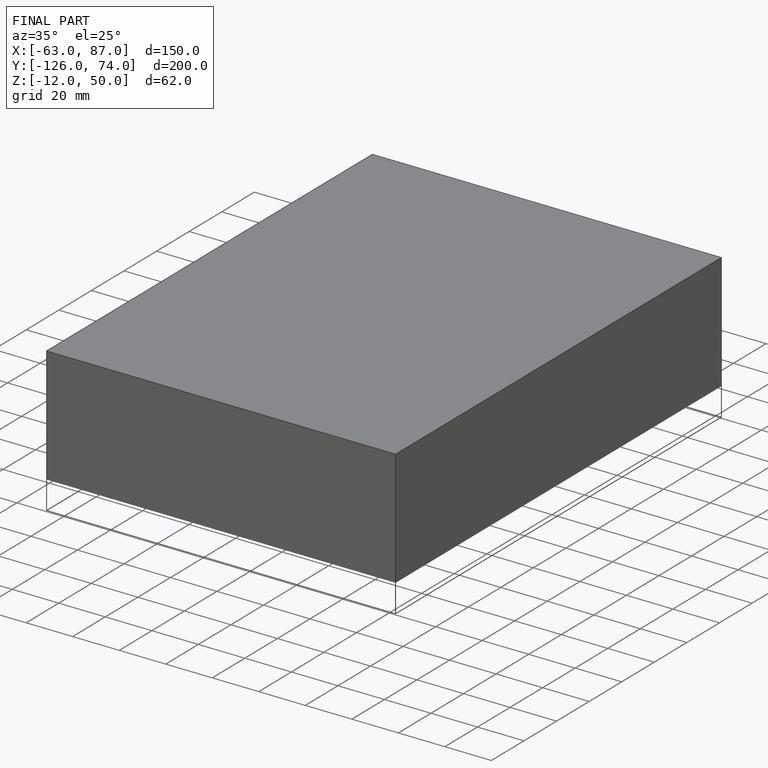
[diagram: finished part — iso view with bounding-box wireframe]
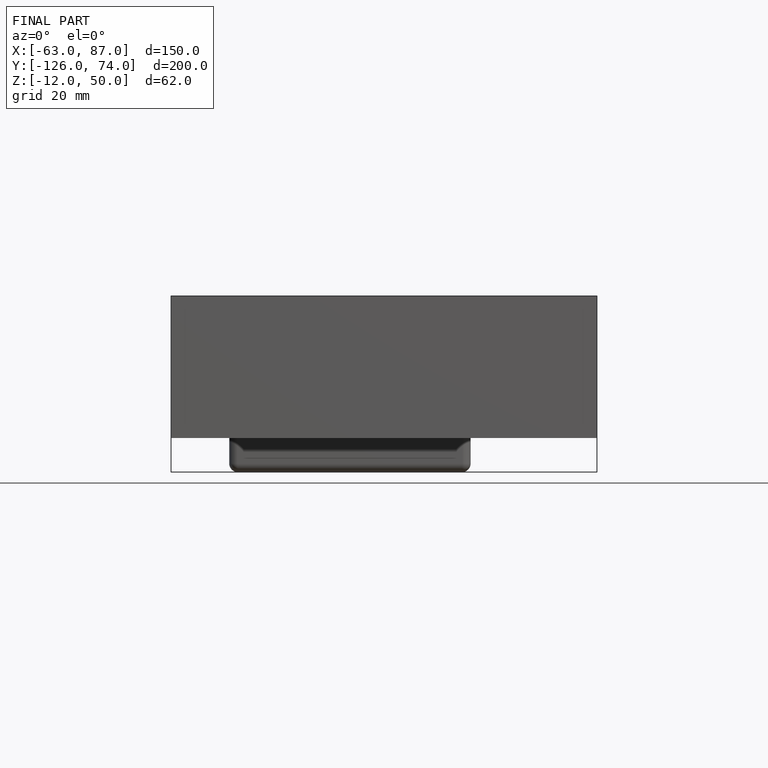
[diagram: finished part — front view with bounding-box wireframe]
